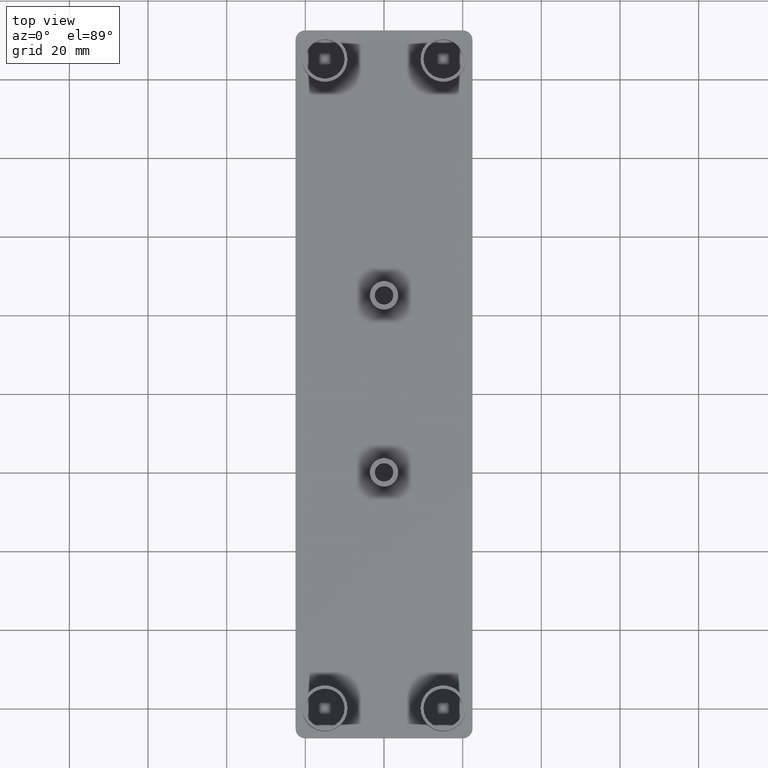
[diagram: clean part render]
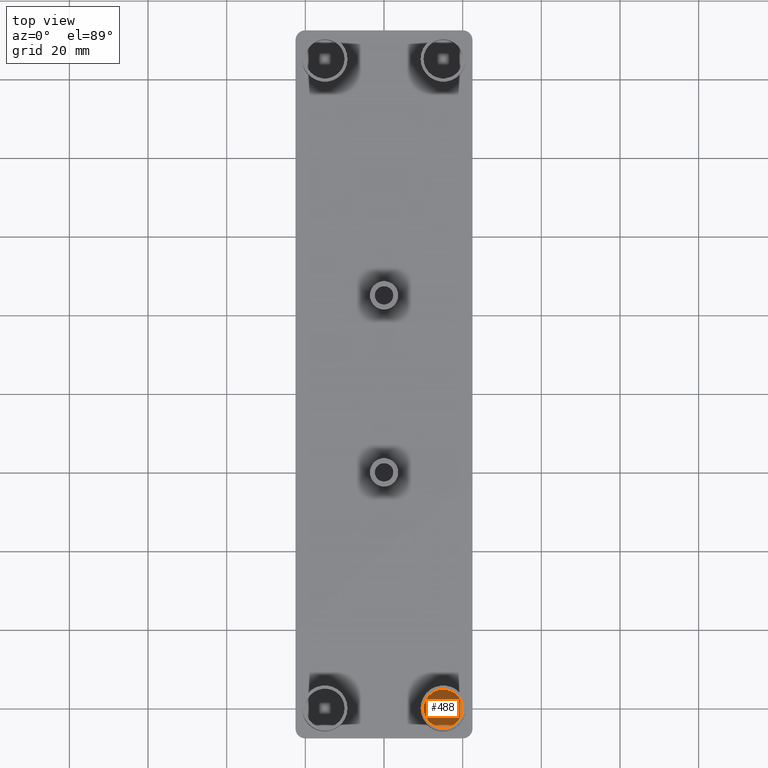
[diagram: same view with one face highlighted and labeled with its STEP entity id]
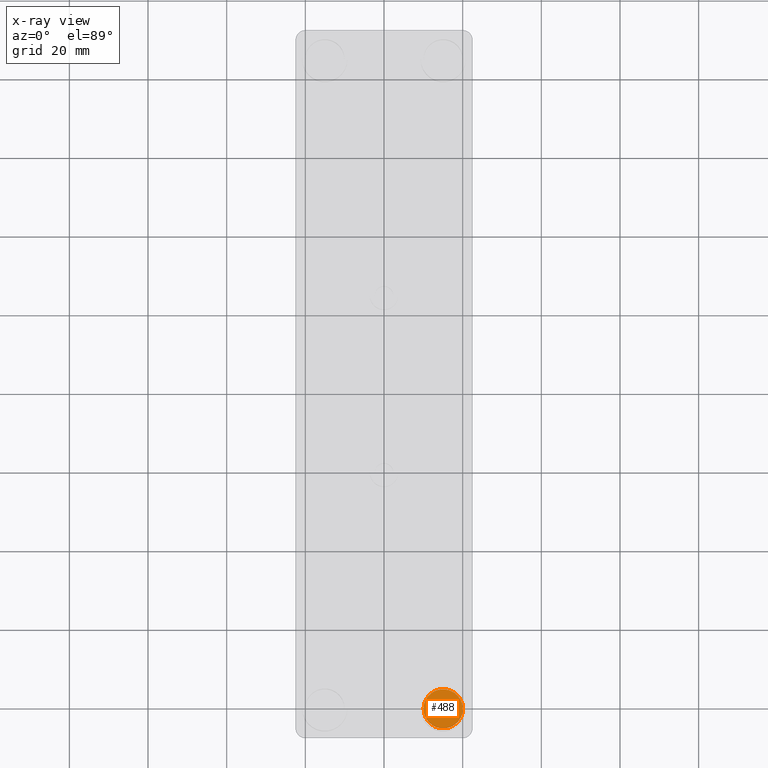
[diagram: x-ray of the same camera — body ghosted, the highlighted face saturated]
A machine part, top view. The second image highlights one B-rep face of the part: STEP entity #488.
The next image is the same camera in x-ray: the body ghosted, the highlighted face saturated — about 0% of this face is hidden behind the body in this view.
In plain terms, the highlighted planar face has unit normal (0, 0, 1).
Its self-contained STEP definition (entity closure, byte-faithful):
#103=FACE_OUTER_BOUND('',#137,.T.);
#137=EDGE_LOOP('',(#315));
#183=CIRCLE('',#551,4.99999999998);
#215=VERTEX_POINT('',#785);
#255=EDGE_CURVE('',#215,#215,#183,.T.);
#315=ORIENTED_EDGE('',*,*,#255,.F.);
#435=PLANE('',#550);
#488=ADVANCED_FACE('',(#103),#435,.T.);
#550=AXIS2_PLACEMENT_3D('',#784,#628,#629);
#551=AXIS2_PLACEMENT_3D('',#786,#630,#631);
#628=DIRECTION('center_axis',(0.,0.,1.));
#629=DIRECTION('ref_axis',(1.,0.,0.));
#630=DIRECTION('center_axis',(0.,0.,-1.));
#631=DIRECTION('ref_axis',(1.,0.,0.));
#784=CARTESIAN_POINT('Origin',(-27.0000096836652,-85.500041855611,0.));
#785=CARTESIAN_POINT('',(10.0499809999637,-60.0500449997599,0.));
#786=CARTESIAN_POINT('Origin',(15.0499809999437,-60.0500449997599,0.));